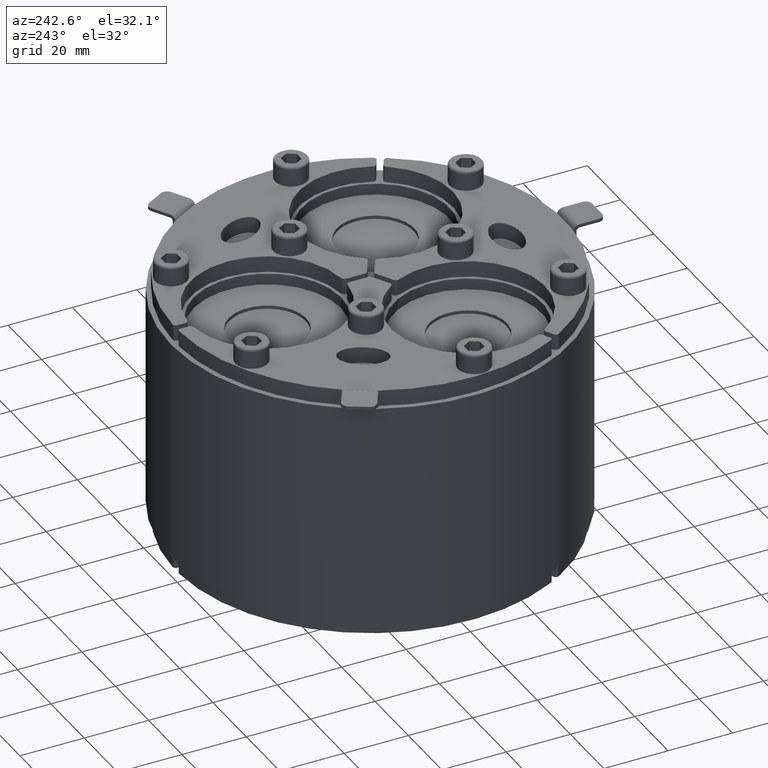
[diagram: clean part render]
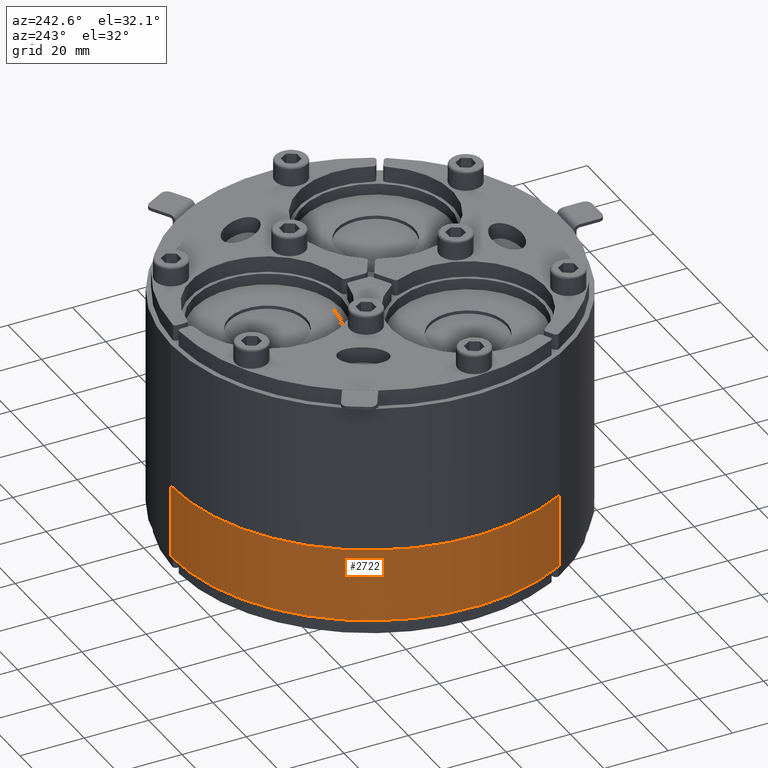
[diagram: same view with one face highlighted and labeled with its STEP entity id]
A machine part, auxiliary view. The second image highlights one B-rep face of the part: STEP entity #2722.
In plain terms, the highlighted cylindrical surface (partial cylindrical patch) has radius 62 mm, axis along (0, 0, -1).
Its self-contained STEP definition (entity closure, byte-faithful):
#402=FACE_OUTER_BOUND('',#581,.T.);
#581=EDGE_LOOP('',(#2283,#2284,#2285,#2286));
#789=LINE('',#4757,#1011);
#790=LINE('',#4763,#1012);
#1011=VECTOR('',#3863,10.);
#1012=VECTOR('',#3870,10.);
#1188=CIRCLE('',#3202,62.);
#1189=CIRCLE('',#3203,62.);
#1380=VERTEX_POINT('',#4753);
#1381=VERTEX_POINT('',#4755);
#1382=VERTEX_POINT('',#4759);
#1383=VERTEX_POINT('',#4761);
#1700=EDGE_CURVE('',#1380,#1381,#789,.T.);
#1701=EDGE_CURVE('',#1380,#1382,#1188,.T.);
#1702=EDGE_CURVE('',#1383,#1381,#1189,.T.);
#1703=EDGE_CURVE('',#1382,#1383,#790,.T.);
#2283=ORIENTED_EDGE('',*,*,#1701,.F.);
#2284=ORIENTED_EDGE('',*,*,#1700,.T.);
#2285=ORIENTED_EDGE('',*,*,#1702,.F.);
#2286=ORIENTED_EDGE('',*,*,#1703,.F.);
#2605=CYLINDRICAL_SURFACE('',#3201,62.);
#2722=ADVANCED_FACE('',(#402),#2605,.T.);
#3201=AXIS2_PLACEMENT_3D('',#4758,#3864,#3865);
#3202=AXIS2_PLACEMENT_3D('',#4760,#3866,#3867);
#3203=AXIS2_PLACEMENT_3D('',#4762,#3868,#3869);
#3863=DIRECTION('',(0.,0.,-1.));
#3864=DIRECTION('center_axis',(0.,0.,-1.));
#3865=DIRECTION('ref_axis',(-0.866025403784438,0.5,0.));
#3866=DIRECTION('center_axis',(0.,0.,1.));
#3867=DIRECTION('ref_axis',(1.,0.,0.));
#3868=DIRECTION('center_axis',(0.,0.,-1.));
#3869=DIRECTION('ref_axis',(1.,0.,0.));
#3870=DIRECTION('',(0.,0.,-1.));
#4753=CARTESIAN_POINT('',(3.97766616205849E-15,62.,0.));
#4755=CARTESIAN_POINT('',(4.44089209850063E-15,62.,-23.));
#4757=CARTESIAN_POINT('',(3.97766616205849E-15,62.,0.));
#4758=CARTESIAN_POINT('Origin',(0.,0.,0.));
#4759=CARTESIAN_POINT('',(-53.6935750346352,-31.,0.));
#4760=CARTESIAN_POINT('Origin',(0.,0.,0.));
#4761=CARTESIAN_POINT('',(-53.6935750346352,-31.,-23.));
#4762=CARTESIAN_POINT('Origin',(0.,0.,-23.));
#4763=CARTESIAN_POINT('',(-53.6935750346352,-31.,0.));